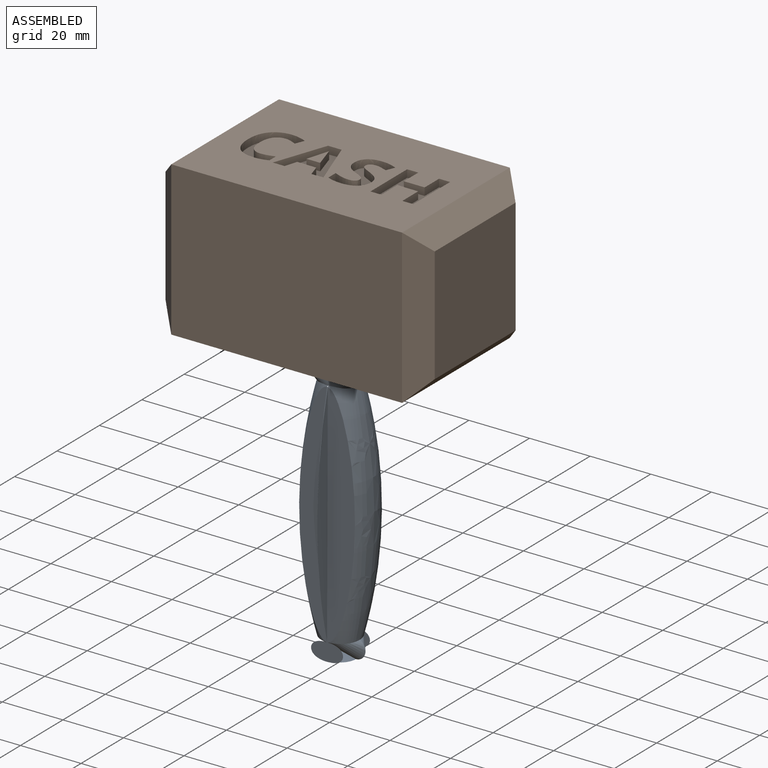
[diagram: assembled view]
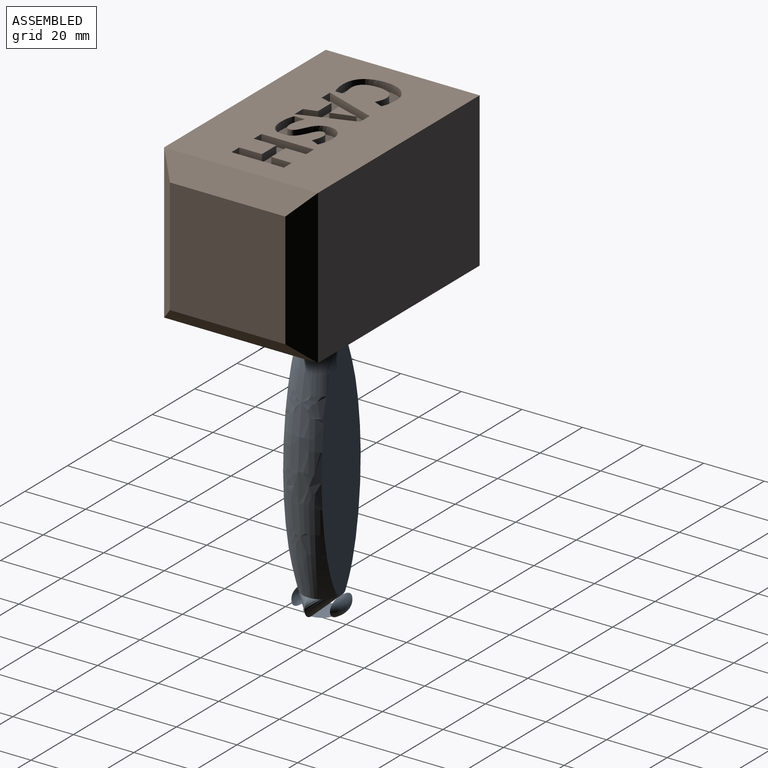
[diagram: assembled view, second angle]
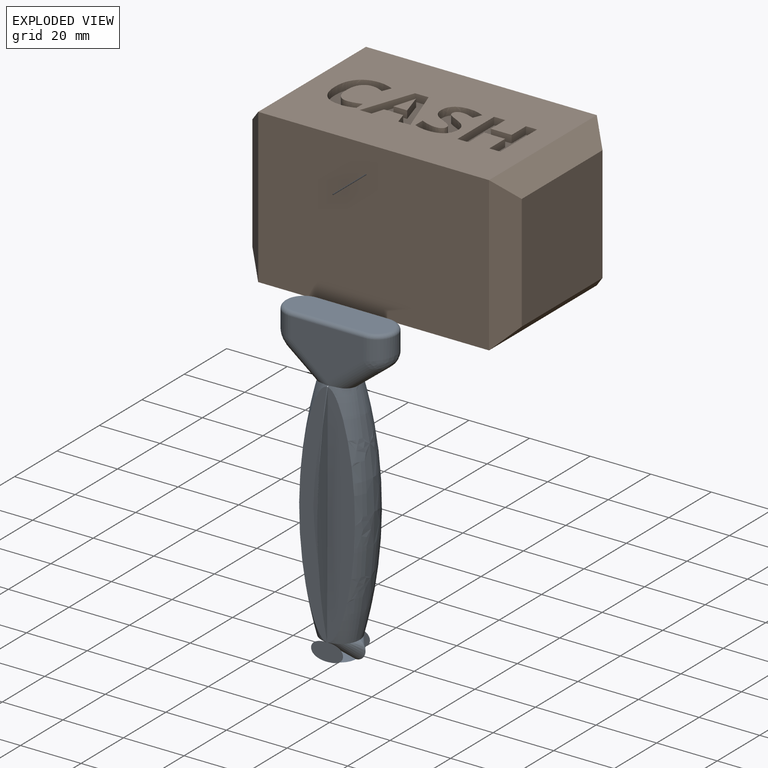
[diagram: exploded view]
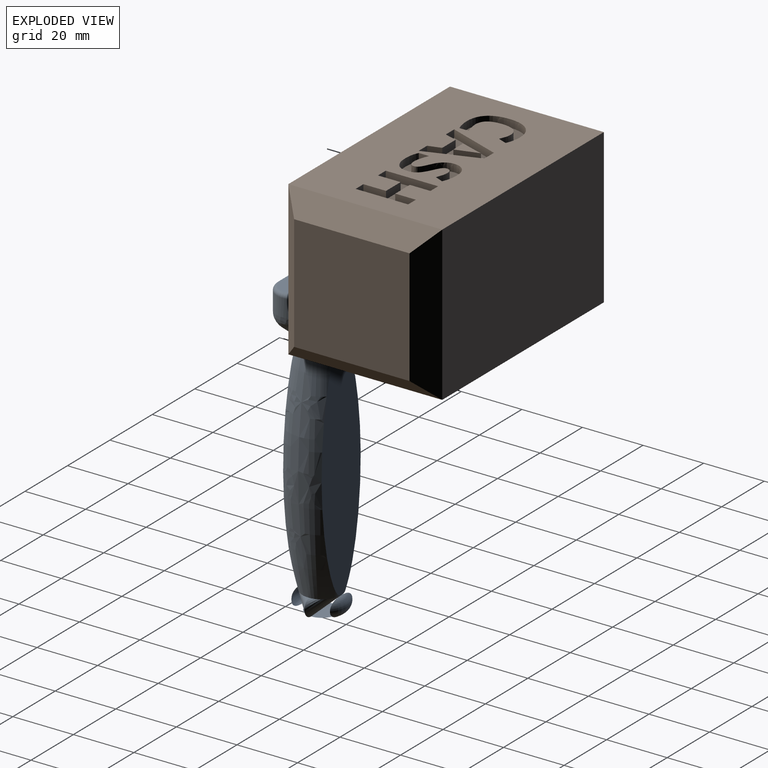
[diagram: exploded view, second angle]
ASSEMBLY  parts=2 mates=2
PART A: 32 faces, bbox 37.9x22.4x101.3 mm
  f0: revolved ~76.66x22.38mm, area 2189.8mm2, adj f1,f15,f16,f17,f18,f19,f20,f21
  f1: plane 4.5x1.87mm, normal (0,0,-1), area 0.7mm2, adj f0,f2,f15
  f2: plane 10.13x8mm, normal (0.62,0,-0.78), area 31.9mm2, adj f1,f3,f15,f22,f23
  f3: bspline ~13.67x7.45mm, area 73.7mm2, adj f2,f4,f15,f22
  f4: cylinder r=6.35mm len=12.7mm, axis (0,0,-1), area 122.8mm2, adj f3,f5,f13,f14
  f5: torus R=5.08mm, axis (0,0,1), area 36.9mm2, adj f4,f6,f11,f12
  f6: plane 34.29x10.16mm, normal (0,0,1), area 326.2mm2, adj f5,f7,f11,f12
  f7: torus R=5.08mm, axis (0,0,1), area 36.9mm2, adj f6,f8,f11,f12
  f8: cylinder r=6.35mm len=12.7mm, axis (0,0,1), area 122.8mm2, adj f7,f9,f13,f14
  f9: bspline ~12.7x6.35mm, area 73.7mm2, adj f8,f10,f17,f20
  f10: plane 10.13x8mm, normal (-0.62,0,-0.78), area 31.9mm2, adj f9,f17,f18,f19,f20
  f11: cylinder r=1.27mm len=24.13mm, axis (-1,0,0), area 48.1mm2, adj f5,f6,f7,f13
  f12: cylinder r=1.27mm len=24.13mm, axis (1,0,0), area 48.1mm2, adj f5,f6,f7,f14
  f13: plane 24.13x16.32mm, normal (0,1,0), area 278.9mm2, adj f4,f8,f11,f15,f17
  f14: plane 24.13x16.32mm, normal (0,-1,0), area 278.9mm2, adj f4,f8,f12,f20,f22
  f15: cylinder r=5.08mm len=15.21mm, axis (0.78,0,0.62), area 105.4mm2, adj f0,f1,f2,f3,f13,f16
  f16: sphere r=5.08mm, area 0.8mm2, adj f0,f15,f17
  f17: cylinder r=5.08mm len=15.21mm, axis (0.78,0,-0.62), area 105.4mm2, adj f0,f9,f10,f13,f16,f18
  f18: plane 4.5x1.87mm, normal (0,0,-1), area 0.7mm2, adj f0,f10,f17
  f19: plane 4.5x1.87mm, normal (0,0,-1), area 0.7mm2, adj f0,f10,f20
  f20: cylinder r=5.08mm len=15.21mm, axis (-0.78,0,0.62), area 105.4mm2, adj f0,f9,f10,f14,f19,f21
  f21: sphere r=5.08mm, area 0.8mm2, adj f0,f20,f22
  f22: cylinder r=5.08mm len=15.21mm, axis (-0.78,0,-0.62), area 105.4mm2, adj f0,f2,f3,f14,f21,f23
  f23: plane 4.5x1.87mm, normal (0,0,-1), area 0.7mm2, adj f0,f2,f22
  f24: plane 76.21x18.43mm, normal (0,-1,0), area 1065.8mm2, adj f0
  f25: torus R=5.08mm, axis (0,0,1), area 398.1mm2, adj f0,f26
  f26: plane 10.16x10.16mm, normal (0,0,1), area 81.1mm2, adj f25
  f27: plane 76.2x18.43mm, normal (0,1,0), area 1065.8mm2, adj f0
  f28: torus R=5.08mm, axis (0,0,1), area 62.9mm2, adj f29
  f29: plane 10.56x5.82mm, normal (0,1,0), area 49.9mm2, adj f28
  f30: torus R=5.08mm, axis (0,0,1), area 62.8mm2, adj f31
  f31: plane 10.56x5.82mm, normal (0,-1,0), area 49.9mm2, adj f30
PART B: 91 faces, bbox 88.9x50.8x50.8 mm
  f0: plane 76.2x50.8mm, normal (0,0,1), area 3351.2mm2, adj f4,f5,f7,f10,f19,f20,f21,f22
  f1: plane 38.1x38.1mm, normal (-1,0,0), area 1451.6mm2, adj f10,f11,f12,f13
  f2: plane 76.2x50.8mm, normal (0,0,-1), area 3421.7mm2, adj f4,f5,f8,f13,f14,f15,f16,f17
  f3: plane 38.1x38.1mm, normal (1,0,0), area 1451.6mm2, adj f6,f7,f8,f9
  f4: plane 76.2x50.8mm, normal (0,-1,0), area 3871mm2, adj f0,f2,f9,f11
  f5: plane 76.2x50.8mm, normal (0,1,0), area 3871mm2, adj f0,f2,f6,f12
  f6: plane 50.8x6.35mm, normal (0.71,0.71,0), area 399.2mm2, adj f3,f5,f7,f8
  f7: plane 50.8x6.35mm, normal (0.71,0,0.71), area 399.2mm2, adj f0,f3,f6,f9
  f8: plane 50.8x6.35mm, normal (0.71,0,-0.71), area 399.2mm2, adj f2,f3,f6,f9
  f9: plane 50.8x6.35mm, normal (0.71,-0.71,0), area 399.2mm2, adj f3,f4,f7,f8
  f10: plane 50.8x6.35mm, normal (-0.71,0,0.71), area 399.2mm2, adj f0,f1,f11,f12
  f11: plane 50.8x6.35mm, normal (-0.71,-0.71,0), area 399.2mm2, adj f1,f4,f10,f13
  f12: plane 50.8x6.35mm, normal (-0.71,0.71,0), area 399.2mm2, adj f1,f5,f10,f13
  f13: plane 50.8x6.35mm, normal (-0.71,0,-0.71), area 399.2mm2, adj f1,f2,f11,f12
  f14: cylinder r=6.35mm len=12.7mm, axis (0,0,-1), area 126.7mm2, adj f2,f15,f17,f18
  f15: plane 25.4x6.35mm, normal (0,-1,0), area 161.3mm2, adj f2,f14,f16,f18
  f16: cylinder r=6.35mm len=12.7mm, axis (0,0,-1), area 126.7mm2, adj f2,f15,f17,f18
  f17: plane 25.4x6.35mm, normal (0,1,0), area 161.3mm2, adj f2,f14,f16,f18
  f18: plane 38.1x12.7mm, normal (0,0,-1), area 449.3mm2, adj f14,f15,f16,f17
  f19: plane 3.96x2.54mm, normal (0,1,0), area 10.1mm2, adj f0,f20,f30,f31
  f20: plane 17.39x6.14mm, normal (-0.94,-0.33,0), area 46.8mm2, adj f0,f19,f21,f31
  f21: plane 4.49x2.54mm, normal (0,-1,0), area 11.4mm2, adj f0,f20,f22,f31
  f22: plane 17.39x6.11mm, normal (0.94,-0.33,0), area 46.8mm2, adj f0,f21,f23,f31
  f23: plane 3.96x2.54mm, normal (0,1,0), area 10.1mm2, adj f0,f22,f24,f31
  f24: plane 4.12x2.54mm, normal (-0.96,0.29,0), area 10.9mm2, adj f0,f23,f25,f31
  f25: plane 6.31x2.54mm, normal (0,1,0), area 16mm2, adj f0,f24,f30,f31
  f26: plane 4.51x2.54mm, normal (0,-1,0), area 11.5mm2, adj f27,f29,f31,f32
  f27: extruded ~7.5x2.54mm, area 19.9mm2, adj f26,f28,f31,f32
  f28: extruded ~2.54x1.16mm, area 3.1mm2, adj f27,f29,f31,f32
  f29: extruded ~6.34x2.54mm, area 16.8mm2, adj f26,f28,f31,f32
  f30: plane 4.12x2.54mm, normal (0.96,0.29,0), area 10.9mm2, adj f0,f19,f25,f31
  f31: plane 17.39x16.74mm, normal (0,0,1), area 136.8mm2, adj f19,f20,f21,f22,f23,f24,f25,f26
  f32: plane 7.5x4.51mm, normal (0,0,1), area 16.6mm2, adj f26,f27,f28,f29
  f33: plane 17.32x2.54mm, normal (-1,0,0), area 44mm2, adj f0,f34,f44,f45
  f34: plane 3.66x2.54mm, normal (0,-1,0), area 9.3mm2, adj f0,f33,f35,f45
  f35: plane 6.79x2.54mm, normal (1,0,0), area 17.2mm2, adj f0,f34,f36,f45
  f36: plane 6.86x2.54mm, normal (0,-1,0), area 17.4mm2, adj f0,f35,f37,f45
  f37: plane 6.79x2.54mm, normal (-1,0,0), area 17.2mm2, adj f0,f36,f38,f45
  f38: plane 3.67x2.54mm, normal (0,-1,0), area 9.3mm2, adj f0,f37,f39,f45
  f39: plane 17.32x2.54mm, normal (1,0,0), area 44mm2, adj f0,f38,f40,f45
  f40: plane 3.67x2.54mm, normal (0,1,0), area 9.3mm2, adj f0,f39,f41,f45
  f41: plane 7.47x2.54mm, normal (-1,0,0), area 19mm2, adj f0,f40,f42,f45
  f42: plane 6.86x2.54mm, normal (0,1,0), area 17.4mm2, adj f0,f41,f43,f45
  f43: plane 7.47x2.54mm, normal (1,0,0), area 19mm2, adj f0,f42,f44,f45
  f44: plane 3.66x2.54mm, normal (0,1,0), area 9.3mm2, adj f0,f33,f43,f45
  f45: plane 17.32x14.19mm, normal (0,0,1), area 148mm2, adj f33,f34,f35,f36,f37,f38,f39,f40
  f46: extruded ~2.86x2.54mm, area 7.8mm2, adj f0,f47,f73,f74
  f47: extruded ~3.33x2.54mm, area 10.4mm2, adj f0,f46,f48,f74
  f48: extruded ~2.54x2.33mm, area 6.7mm2, adj f0,f47,f49,f74
  f49: extruded ~2.54x0.72mm, area 2.6mm2, adj f0,f48,f50,f74
  f50: extruded ~2.54x0.85mm, area 2.3mm2, adj f0,f49,f51,f74
  f51: extruded ~2.54x1.27mm, area 3.6mm2, adj f0,f50,f52,f74
  f52: extruded ~2.54x1.6mm, area 4.3mm2, adj f0,f51,f53,f74
  f53: extruded ~2.54x1.78mm, area 4.6mm2, adj f0,f52,f54,f74
  f54: extruded ~2.54x2.29mm, area 6.2mm2, adj f0,f53,f55,f74
  f55: plane 2.86x2.54mm, normal (-0.92,0.38,0), area 7.9mm2, adj f0,f54,f56,f74
  f56: extruded ~2.56x2.54mm, area 6.9mm2, adj f0,f55,f57,f74
  f57: extruded ~2.58x2.54mm, area 6.6mm2, adj f0,f56,f58,f74
  f58: extruded ~4.31x2.54mm, area 11.7mm2, adj f0,f57,f59,f74
  f59: extruded ~3.61x2.54mm, area 10.3mm2, adj f0,f58,f60,f74
  f60: extruded ~2.54x2.13mm, area 5.6mm2, adj f0,f59,f61,f74
  f61: extruded ~2.54x1.6mm, area 5.2mm2, adj f0,f60,f62,f74
  f62: extruded ~2.54x2.38mm, area 7.1mm2, adj f0,f61,f63,f74
  f63: extruded ~2.54x2.25mm, area 6.4mm2, adj f0,f62,f64,f74
  f64: extruded ~2.54x0.84mm, area 2.9mm2, adj f0,f63,f65,f74
  f65: extruded ~2.54x0.91mm, area 2.5mm2, adj f0,f64,f66,f74
  f66: extruded ~2.54x1.37mm, area 4mm2, adj f0,f65,f67,f74
  f67: extruded ~2.54x1.85mm, area 4.9mm2, adj f0,f66,f68,f74
  f68: extruded ~2.54x2.22mm, area 5.7mm2, adj f0,f67,f69,f74
  f69: extruded ~2.97x2.54mm, area 8mm2, adj f0,f68,f70,f74
  f70: plane 3.41x2.54mm, normal (1,0,0), area 8.7mm2, adj f0,f69,f71,f74
  f71: extruded ~4.9x2.54mm, area 12.9mm2, adj f0,f70,f72,f74
  f72: extruded ~4.69x2.54mm, area 12.6mm2, adj f0,f71,f73,f74
  f73: extruded ~3.7x2.54mm, area 10.7mm2, adj f0,f46,f72,f74
  f74: plane 17.8x11.29mm, normal (0,0,1), area 113.1mm2, adj f46,f47,f48,f49,f50,f51,f52,f53
  f75: extruded ~2.54x1.93mm, area 5mm2, adj f0,f76,f89,f90
  f76: extruded ~2.54x1.96mm, area 5.4mm2, adj f0,f75,f77,f90
  f77: plane 2.99x2.54mm, normal (-0.93,0.37,0), area 8.2mm2, adj f0,f76,f78,f90
  f78: extruded ~5.07x2.54mm, area 13.3mm2, adj f0,f77,f79,f90
  f79: extruded ~4.32x2.54mm, area 11.4mm2, adj f0,f78,f80,f90
  f80: extruded ~3.11x2.83mm, area 10.8mm2, adj f0,f79,f81,f90
  f81: extruded ~4.73x2.54mm, area 12.4mm2, adj f0,f80,f82,f90
  f82: extruded ~6.58x2.54mm, area 17.9mm2, adj f0,f81,f83,f90
  f83: extruded ~5.78x2.54mm, area 16.3mm2, adj f0,f82,f84,f90
  f84: extruded ~4.76x2.54mm, area 12.4mm2, adj f0,f83,f85,f90
  f85: plane 3.08x2.54mm, normal (-1,0,0), area 7.8mm2, adj f0,f84,f86,f90
  f86: extruded ~4.42x2.54mm, area 11.5mm2, adj f0,f85,f87,f90
  f87: extruded ~5.79x4.35mm, area 21mm2, adj f0,f86,f88,f90
  f88: extruded ~4.34x2.54mm, area 11.6mm2, adj f0,f87,f89,f90
  f89: extruded ~3.21x2.54mm, area 9.4mm2, adj f0,f75,f88,f90
  f90: plane 17.8x13.19mm, normal (0,0,1), area 105.3mm2, adj f75,f76,f77,f78,f79,f80,f81,f82
PLACE A t=(20.82,12.61,-67)mm
PLACE B t=(20.82,12.61,-13.16)mm
MATE planar B.f15 <-> A.f13  axis (0,-1,0) through (20.82,18.96,-9.98)mm
MATE planar B.f18 <-> A.f25  axis (0,0,-1) through (20.82,12.61,-6.81)mm
